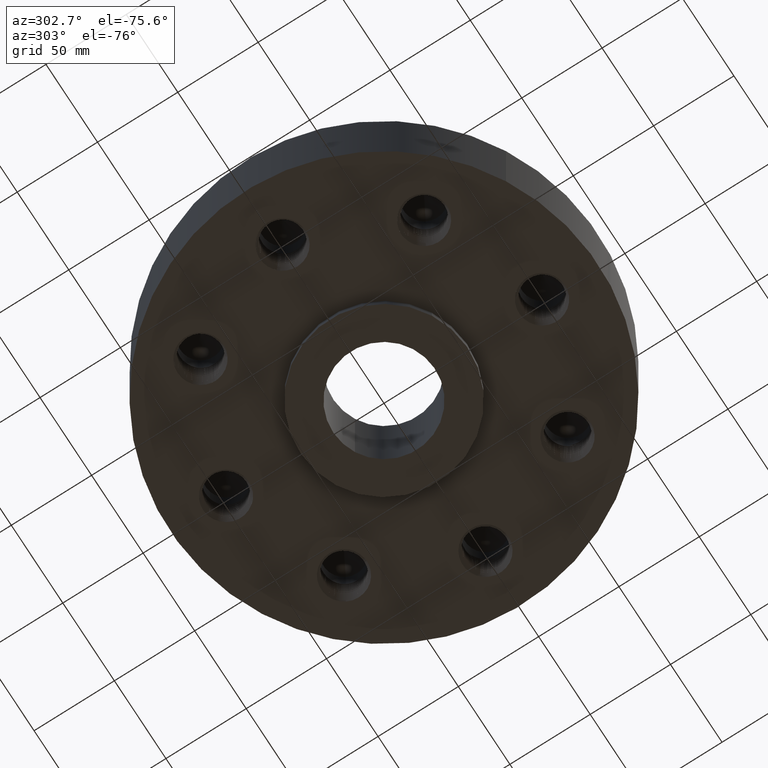
[diagram: clean part render]
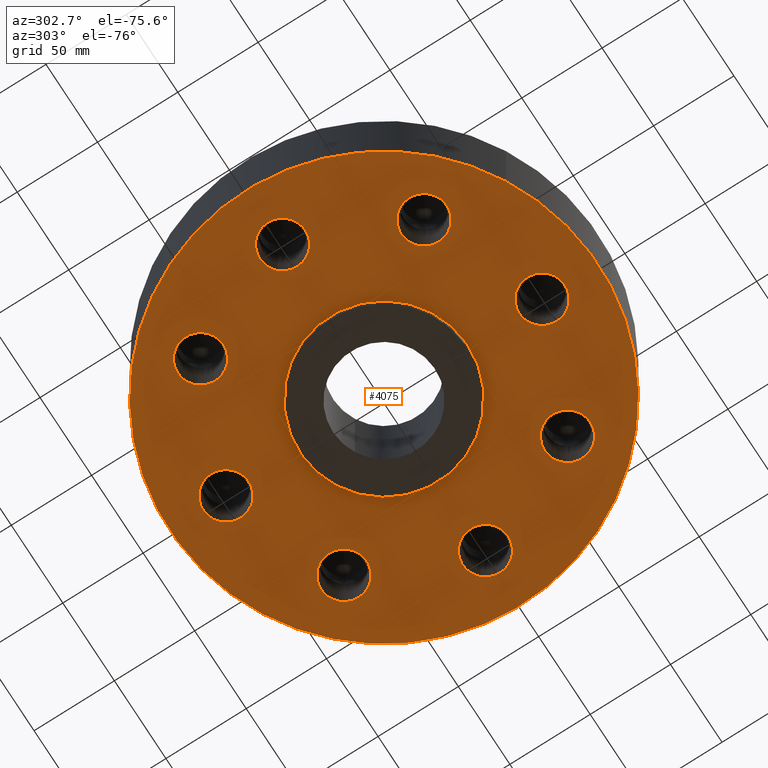
[diagram: same view with one face highlighted and labeled with its STEP entity id]
A machine part, auxiliary view. The second image highlights one B-rep face of the part: STEP entity #4075.
In plain terms, the highlighted planar face has unit normal (0, 0, -1).
Its self-contained STEP definition (entity closure, byte-faithful):
#3642=AXIS2_PLACEMENT_3D('Circle Axis2P3D',#3640,#3641,$) ;
#3662=AXIS2_PLACEMENT_3D('Circle Axis2P3D',#3660,#3661,$) ;
#3682=AXIS2_PLACEMENT_3D('Circle Axis2P3D',#3680,#3681,$) ;
#3694=AXIS2_PLACEMENT_3D('Plane Axis2P3D',#3691,#3692,#3693) ;
#3698=AXIS2_PLACEMENT_3D('Circle Axis2P3D',#3696,#3697,$) ;
#3707=AXIS2_PLACEMENT_3D('Circle Axis2P3D',#3705,#3706,$) ;
#3723=AXIS2_PLACEMENT_3D('Circle Axis2P3D',#3721,#3722,$) ;
#3732=AXIS2_PLACEMENT_3D('Circle Axis2P3D',#3730,#3731,$) ;
#3741=AXIS2_PLACEMENT_3D('Circle Axis2P3D',#3739,#3740,$) ;
#3750=AXIS2_PLACEMENT_3D('Circle Axis2P3D',#3748,#3749,$) ;
#3757=AXIS2_PLACEMENT_3D('Circle Axis2P3D',#3755,#3756,$) ;
#3789=AXIS2_PLACEMENT_3D('Circle Axis2P3D',#3787,#3788,$) ;
#3798=AXIS2_PLACEMENT_3D('Circle Axis2P3D',#3796,#3797,$) ;
#3805=AXIS2_PLACEMENT_3D('Circle Axis2P3D',#3803,#3804,$) ;
#3837=AXIS2_PLACEMENT_3D('Circle Axis2P3D',#3835,#3836,$) ;
#3846=AXIS2_PLACEMENT_3D('Circle Axis2P3D',#3844,#3845,$) ;
#3853=AXIS2_PLACEMENT_3D('Circle Axis2P3D',#3851,#3852,$) ;
#3885=AXIS2_PLACEMENT_3D('Circle Axis2P3D',#3883,#3884,$) ;
#3894=AXIS2_PLACEMENT_3D('Circle Axis2P3D',#3892,#3893,$) ;
#3901=AXIS2_PLACEMENT_3D('Circle Axis2P3D',#3899,#3900,$) ;
#3933=AXIS2_PLACEMENT_3D('Circle Axis2P3D',#3931,#3932,$) ;
#3942=AXIS2_PLACEMENT_3D('Circle Axis2P3D',#3940,#3941,$) ;
#3949=AXIS2_PLACEMENT_3D('Circle Axis2P3D',#3947,#3948,$) ;
#3981=AXIS2_PLACEMENT_3D('Circle Axis2P3D',#3979,#3980,$) ;
#3990=AXIS2_PLACEMENT_3D('Circle Axis2P3D',#3988,#3989,$) ;
#3997=AXIS2_PLACEMENT_3D('Circle Axis2P3D',#3995,#3996,$) ;
#4029=AXIS2_PLACEMENT_3D('Circle Axis2P3D',#4027,#4028,$) ;
#4038=AXIS2_PLACEMENT_3D('Circle Axis2P3D',#4036,#4037,$) ;
#4045=AXIS2_PLACEMENT_3D('Circle Axis2P3D',#4043,#4044,$) ;
#3359=CARTESIAN_POINT('Vertex',(2.74003877711,2.17753877711,-7.14126920328E-014)) ;
#3578=CARTESIAN_POINT('Vertex',(2.80909166781,2.1843124971,0.)) ;
#3582=CARTESIAN_POINT('Control Point',(2.74003877711,2.17753877711,-7.15656755204E-014)) ;
#3583=CARTESIAN_POINT('Control Point',(2.7631925368,2.17837159074,-7.15658967559E-014)) ;
#3584=CARTESIAN_POINT('Control Point',(2.7862702339,2.1806367547,-1.59064916652E-012)) ;
#3585=CARTESIAN_POINT('Control Point',(2.80909163002,2.18431239499,5.88022631462E-012)) ;
#3615=CARTESIAN_POINT('Control Point',(2.74003877711,2.17753877711,4.07077073107E-027)) ;
#3616=CARTESIAN_POINT('Control Point',(2.71689746355,2.17837114305,-7.73908014437E-019)) ;
#3617=CARTESIAN_POINT('Control Point',(2.69383191642,2.18063437458,-2.95351127741E-011)) ;
#3618=CARTESIAN_POINT('Control Point',(2.67101908855,2.1843082813,-7.45290618372E-011)) ;
#3619=CARTESIAN_POINT('Vertex',(2.67101909177,2.18430837211,0.)) ;
#3640=CARTESIAN_POINT('Axis2P3D Location',(2.74003877711,2.74003877711,0.)) ;
#3644=CARTESIAN_POINT('Vertex',(2.24859254245,2.47156047549,-7.86772222175E-017)) ;
#3660=CARTESIAN_POINT('Axis2P3D Location',(2.74003877711,2.74003877711,0.)) ;
#3664=CARTESIAN_POINT('Vertex',(3.23148501177,3.00851707873,-1.83580185174E-016)) ;
#3680=CARTESIAN_POINT('Axis2P3D Location',(2.74003877711,2.74003877711,0.)) ;
#3691=CARTESIAN_POINT('Axis2P3D Location',(0.,5.25000000002,0.)) ;
#3696=CARTESIAN_POINT('Axis2P3D Location',(0.,0.,0.)) ;
#3700=CARTESIAN_POINT('Vertex',(-2.51698407768,-4.60730844994,-3.86042903681E-014)) ;
#3702=CARTESIAN_POINT('Vertex',(2.51698407768,4.60730844994,-3.86042903681E-014)) ;
#3705=CARTESIAN_POINT('Axis2P3D Location',(0.,0.,0.)) ;
#3721=CARTESIAN_POINT('Axis2P3D Location',(0.,0.,0.)) ;
#3725=CARTESIAN_POINT('Vertex',(0.987616609529,1.8078200775,-2.82538646897E-014)) ;
#3727=CARTESIAN_POINT('Vertex',(-0.987616609529,-1.8078200775,-2.82538646897E-014)) ;
#3730=CARTESIAN_POINT('Axis2P3D Location',(0.,0.,0.)) ;
#3739=CARTESIAN_POINT('Axis2P3D Location',(3.87500000002,2.23792987641E-015,0.)) ;
#3743=CARTESIAN_POINT('Vertex',(4.41234779281,-0.157662137441,0.)) ;
#3745=CARTESIAN_POINT('Vertex',(3.53086994622,-0.441785588352,0.)) ;
#3748=CARTESIAN_POINT('Axis2P3D Location',(3.87500000002,1.1189649382E-015,0.)) ;
#3752=CARTESIAN_POINT('Vertex',(3.33765220722,0.157662137441,-1.13644876536E-016)) ;
#3755=CARTESIAN_POINT('Axis2P3D Location',(3.87500000002,2.23792987641E-015,0.)) ;
#3759=CARTESIAN_POINT('Vertex',(3.43323497459,-0.344156450343,0.)) ;
#3763=CARTESIAN_POINT('Control Point',(3.4772524356,-0.397747564419,0.)) ;
#3764=CARTESIAN_POINT('Control Point',(3.46778755071,-0.387576393613,0.)) ;
#3765=CARTESIAN_POINT('Control Point',(3.45864184077,-0.37711811464,0.)) ;
#3766=CARTESIAN_POINT('Control Point',(3.44982725823,-0.366385936873,0.)) ;
#3767=CARTESIAN_POINT('Control Point',(3.44135490697,-0.355393842082,0.)) ;
#3768=CARTESIAN_POINT('Control Point',(3.43323497459,-0.344156450343,0.)) ;
#3769=CARTESIAN_POINT('Vertex',(3.4772524356,-0.397747564419,-7.14126920328E-014)) ;
#3773=CARTESIAN_POINT('Control Point',(3.4772524356,-0.397747564419,0.)) ;
#3774=CARTESIAN_POINT('Control Point',(3.48742907679,-0.407217539811,0.)) ;
#3775=CARTESIAN_POINT('Control Point',(3.49789313516,-0.416367997042,0.)) ;
#3776=CARTESIAN_POINT('Control Point',(3.50863094066,-0.425186805026,0.)) ;
#3777=CARTESIAN_POINT('Control Point',(3.5196281704,-0.433662749092,0.)) ;
#3778=CARTESIAN_POINT('Control Point',(3.53086994622,-0.441785588352,0.)) ;
#3787=CARTESIAN_POINT('Axis2P3D Location',(2.74003877711,-2.74003877711,0.)) ;
#3791=CARTESIAN_POINT('Vertex',(3.00851707873,-3.23148501177,0.)) ;
#3793=CARTESIAN_POINT('Vertex',(2.1843124971,-2.80909166781,0.)) ;
#3796=CARTESIAN_POINT('Axis2P3D Location',(2.74003877711,-2.74003877711,0.)) ;
#3800=CARTESIAN_POINT('Vertex',(2.47156047549,-2.24859254245,-1.74838271595E-017)) ;
#3803=CARTESIAN_POINT('Axis2P3D Location',(2.74003877711,-2.74003877711,0.)) ;
#3807=CARTESIAN_POINT('Vertex',(2.18430837211,-2.67101909177,0.)) ;
#3811=CARTESIAN_POINT('Control Point',(2.17753877711,-2.74003877711,0.)) ;
#3812=CARTESIAN_POINT('Control Point',(2.17803819667,-2.72615398897,0.)) ;
#3813=CARTESIAN_POINT('Control Point',(2.17896632313,-2.71229187547,0.)) ;
#3814=CARTESIAN_POINT('Control Point',(2.18032226772,-2.69847022871,0.)) ;
#3815=CARTESIAN_POINT('Control Point',(2.18210399546,-2.68470678692,0.)) ;
#3816=CARTESIAN_POINT('Control Point',(2.18430837211,-2.67101909177,0.)) ;
#3817=CARTESIAN_POINT('Vertex',(2.17753877711,-2.74003877711,-7.14126920328E-014)) ;
#3821=CARTESIAN_POINT('Control Point',(2.17753877711,-2.74003877711,0.)) ;
#3822=CARTESIAN_POINT('Control Point',(2.17803846529,-2.75393103292,0.)) ;
#3823=CARTESIAN_POINT('Control Point',(2.17896732156,-2.76780058992,0.)) ;
#3824=CARTESIAN_POINT('Control Point',(2.18032425772,-2.78162920393,0.)) ;
#3825=CARTESIAN_POINT('Control Point',(2.18210707591,-2.79539881717,0.)) ;
#3826=CARTESIAN_POINT('Control Point',(2.1843124971,-2.80909166781,0.)) ;
#3835=CARTESIAN_POINT('Axis2P3D Location',(1.1189649382E-015,-3.87500000002,0.)) ;
#3839=CARTESIAN_POINT('Vertex',(-0.157662137441,-4.41234779281,0.)) ;
#3841=CARTESIAN_POINT('Vertex',(-0.441785588351,-3.53086994622,0.)) ;
#3844=CARTESIAN_POINT('Axis2P3D Location',(1.32877086412E-015,-3.87500000002,0.)) ;
#3848=CARTESIAN_POINT('Vertex',(0.157662137441,-3.33765220722,0.)) ;
#3851=CARTESIAN_POINT('Axis2P3D Location',(1.1189649382E-015,-3.87500000002,0.)) ;
#3855=CARTESIAN_POINT('Vertex',(-0.344156450348,-3.43323497459,0.)) ;
#3859=CARTESIAN_POINT('Control Point',(-0.397747564419,-3.4772524356,0.)) ;
#3860=CARTESIAN_POINT('Control Point',(-0.387576393614,-3.46778755071,0.)) ;
#3861=CARTESIAN_POINT('Control Point',(-0.377118114642,-3.45864184077,0.)) ;
#3862=CARTESIAN_POINT('Control Point',(-0.366385936876,-3.44982725823,0.)) ;
#3863=CARTESIAN_POINT('Control Point',(-0.355393842087,-3.44135490697,0.)) ;
#3864=CARTESIAN_POINT('Control Point',(-0.344156450348,-3.43323497459,0.)) ;
#3865=CARTESIAN_POINT('Vertex',(-0.397747564419,-3.4772524356,-7.14126920328E-014)) ;
#3869=CARTESIAN_POINT('Control Point',(-0.397747564419,-3.4772524356,0.)) ;
#3870=CARTESIAN_POINT('Control Point',(-0.407217539811,-3.48742907679,0.)) ;
#3871=CARTESIAN_POINT('Control Point',(-0.416367997041,-3.49789313516,0.)) ;
#3872=CARTESIAN_POINT('Control Point',(-0.425186805026,-3.50863094066,0.)) ;
#3873=CARTESIAN_POINT('Control Point',(-0.433662749091,-3.5196281704,0.)) ;
#3874=CARTESIAN_POINT('Control Point',(-0.441785588351,-3.53086994622,0.)) ;
#3883=CARTESIAN_POINT('Axis2P3D Location',(-2.74003877711,-2.74003877711,0.)) ;
#3887=CARTESIAN_POINT('Vertex',(-3.23148501177,-3.00851707873,0.)) ;
#3889=CARTESIAN_POINT('Vertex',(-2.80909166782,-2.1843124971,0.)) ;
#3892=CARTESIAN_POINT('Axis2P3D Location',(-2.74003877711,-2.74003877711,0.)) ;
#3896=CARTESIAN_POINT('Vertex',(-2.24859254245,-2.47156047549,0.)) ;
#3899=CARTESIAN_POINT('Axis2P3D Location',(-2.74003877711,-2.74003877711,0.)) ;
#3903=CARTESIAN_POINT('Vertex',(-2.67101909177,-2.18430837211,0.)) ;
#3907=CARTESIAN_POINT('Control Point',(-2.74003877711,-2.17753877711,0.)) ;
#3908=CARTESIAN_POINT('Control Point',(-2.72615398897,-2.17803819667,0.)) ;
#3909=CARTESIAN_POINT('Control Point',(-2.71229187548,-2.17896632313,0.)) ;
#3910=CARTESIAN_POINT('Control Point',(-2.69847022871,-2.18032226772,0.)) ;
#3911=CARTESIAN_POINT('Control Point',(-2.68470678692,-2.18210399546,0.)) ;
#3912=CARTESIAN_POINT('Control Point',(-2.67101909177,-2.18430837211,0.)) ;
#3913=CARTESIAN_POINT('Vertex',(-2.74003877711,-2.17753877711,-7.14126920328E-014)) ;
#3917=CARTESIAN_POINT('Control Point',(-2.74003877711,-2.17753877711,0.)) ;
#3918=CARTESIAN_POINT('Control Point',(-2.75393103292,-2.17803846529,0.)) ;
#3919=CARTESIAN_POINT('Control Point',(-2.76780058992,-2.17896732156,0.)) ;
#3920=CARTESIAN_POINT('Control Point',(-2.78162920393,-2.18032425772,0.)) ;
#3921=CARTESIAN_POINT('Control Point',(-2.79539881718,-2.18210707591,0.)) ;
#3922=CARTESIAN_POINT('Control Point',(-2.80909166782,-2.1843124971,0.)) ;
#3931=CARTESIAN_POINT('Axis2P3D Location',(-3.87500000002,-1.1189649382E-015,0.)) ;
#3935=CARTESIAN_POINT('Vertex',(-4.41234779281,0.157662137441,0.)) ;
#3937=CARTESIAN_POINT('Vertex',(-3.53086994622,0.44178558835,0.)) ;
#3940=CARTESIAN_POINT('Axis2P3D Location',(-3.87500000002,-2.23792987641E-015,0.)) ;
#3944=CARTESIAN_POINT('Vertex',(-3.33765220722,-0.157662137441,0.)) ;
#3947=CARTESIAN_POINT('Axis2P3D Location',(-3.87500000002,-1.1189649382E-015,0.)) ;
#3951=CARTESIAN_POINT('Vertex',(-3.43323497459,0.344156450345,0.)) ;
#3955=CARTESIAN_POINT('Control Point',(-3.4772524356,0.397747564419,0.)) ;
#3956=CARTESIAN_POINT('Control Point',(-3.46778755071,0.387576393613,0.)) ;
#3957=CARTESIAN_POINT('Control Point',(-3.45864184077,0.377118114641,0.)) ;
#3958=CARTESIAN_POINT('Control Point',(-3.44982725823,0.366385936874,0.)) ;
#3959=CARTESIAN_POINT('Control Point',(-3.44135490697,0.355393842084,0.)) ;
#3960=CARTESIAN_POINT('Control Point',(-3.43323497459,0.344156450345,0.)) ;
#3961=CARTESIAN_POINT('Vertex',(-3.4772524356,0.397747564419,-7.14126920328E-014)) ;
#3965=CARTESIAN_POINT('Control Point',(-3.4772524356,0.397747564419,0.)) ;
#3966=CARTESIAN_POINT('Control Point',(-3.48742907679,0.40721753981,0.)) ;
#3967=CARTESIAN_POINT('Control Point',(-3.49789313516,0.416367997041,0.)) ;
#3968=CARTESIAN_POINT('Control Point',(-3.50863094066,0.425186805025,0.)) ;
#3969=CARTESIAN_POINT('Control Point',(-3.51962817039,0.43366274909,0.)) ;
#3970=CARTESIAN_POINT('Control Point',(-3.53086994622,0.44178558835,0.)) ;
#3979=CARTESIAN_POINT('Axis2P3D Location',(-2.74003877711,2.74003877711,0.)) ;
#3983=CARTESIAN_POINT('Vertex',(-3.00851707873,3.23148501177,0.)) ;
#3985=CARTESIAN_POINT('Vertex',(-2.1843124971,2.80909166781,0.)) ;
#3988=CARTESIAN_POINT('Axis2P3D Location',(-2.74003877711,2.74003877711,0.)) ;
#3992=CARTESIAN_POINT('Vertex',(-2.47156047549,2.24859254245,0.)) ;
#3995=CARTESIAN_POINT('Axis2P3D Location',(-2.74003877711,2.74003877711,0.)) ;
#3999=CARTESIAN_POINT('Vertex',(-2.18430837211,2.67101909177,0.)) ;
#4003=CARTESIAN_POINT('Control Point',(-2.17753877711,2.74003877711,0.)) ;
#4004=CARTESIAN_POINT('Control Point',(-2.17803819667,2.72615398897,0.)) ;
#4005=CARTESIAN_POINT('Control Point',(-2.17896632313,2.71229187548,0.)) ;
#4006=CARTESIAN_POINT('Control Point',(-2.18032226772,2.69847022871,0.)) ;
#4007=CARTESIAN_POINT('Control Point',(-2.18210399546,2.68470678692,0.)) ;
#4008=CARTESIAN_POINT('Control Point',(-2.18430837211,2.67101909177,0.)) ;
#4009=CARTESIAN_POINT('Vertex',(-2.17753877711,2.74003877711,-7.14126920328E-014)) ;
#4013=CARTESIAN_POINT('Control Point',(-2.17753877711,2.74003877711,0.)) ;
#4014=CARTESIAN_POINT('Control Point',(-2.17803846529,2.75393103292,0.)) ;
#4015=CARTESIAN_POINT('Control Point',(-2.17896732156,2.76780058992,0.)) ;
#4016=CARTESIAN_POINT('Control Point',(-2.18032425772,2.78162920393,0.)) ;
#4017=CARTESIAN_POINT('Control Point',(-2.18210707591,2.79539881717,0.)) ;
#4018=CARTESIAN_POINT('Control Point',(-2.1843124971,2.80909166781,0.)) ;
#4027=CARTESIAN_POINT('Axis2P3D Location',(-1.53857679003E-015,3.87500000002,0.)) ;
#4031=CARTESIAN_POINT('Vertex',(0.157662137441,4.41234779281,0.)) ;
#4033=CARTESIAN_POINT('Vertex',(0.441785588351,3.53086994622,0.)) ;
#4036=CARTESIAN_POINT('Axis2P3D Location',(-1.60851209867E-015,3.87500000002,0.)) ;
#4040=CARTESIAN_POINT('Vertex',(-0.157662137441,3.33765220722,0.)) ;
#4043=CARTESIAN_POINT('Axis2P3D Location',(-1.53857679003E-015,3.87500000002,0.)) ;
#4047=CARTESIAN_POINT('Vertex',(0.34415645034,3.43323497459,0.)) ;
#4051=CARTESIAN_POINT('Control Point',(0.397747564419,3.4772524356,0.)) ;
#4052=CARTESIAN_POINT('Control Point',(0.387576393612,3.46778755071,0.)) ;
#4053=CARTESIAN_POINT('Control Point',(0.377118114639,3.45864184077,0.)) ;
#4054=CARTESIAN_POINT('Control Point',(0.366385936871,3.44982725823,0.)) ;
#4055=CARTESIAN_POINT('Control Point',(0.35539384208,3.44135490697,0.)) ;
#4056=CARTESIAN_POINT('Control Point',(0.34415645034,3.43323497459,0.)) ;
#4057=CARTESIAN_POINT('Vertex',(0.397747564419,3.4772524356,-7.14126920328E-014)) ;
#4061=CARTESIAN_POINT('Control Point',(0.397747564419,3.4772524356,0.)) ;
#4062=CARTESIAN_POINT('Control Point',(0.407217539811,3.48742907679,0.)) ;
#4063=CARTESIAN_POINT('Control Point',(0.416367997042,3.49789313516,0.)) ;
#4064=CARTESIAN_POINT('Control Point',(0.425186805026,3.50863094066,0.)) ;
#4065=CARTESIAN_POINT('Control Point',(0.433662749091,3.5196281704,0.)) ;
#4066=CARTESIAN_POINT('Control Point',(0.441785588351,3.53086994622,0.)) ;
#3641=DIRECTION('Axis2P3D Direction',(0.,0.,-0.0393700787402)) ;
#3661=DIRECTION('Axis2P3D Direction',(0.,0.,-0.0393700787402)) ;
#3681=DIRECTION('Axis2P3D Direction',(0.,0.,-0.0393700787402)) ;
#3692=DIRECTION('Axis2P3D Direction',(0.,0.,-0.0393700787402)) ;
#3693=DIRECTION('Axis2P3D XDirection',(0.0393700787402,0.,0.)) ;
#3697=DIRECTION('Axis2P3D Direction',(0.,0.,-0.0393700787402)) ;
#3706=DIRECTION('Axis2P3D Direction',(0.,0.,-0.0393700787402)) ;
#3722=DIRECTION('Axis2P3D Direction',(0.,0.,-0.0393700787402)) ;
#3731=DIRECTION('Axis2P3D Direction',(0.,0.,-0.0393700787402)) ;
#3740=DIRECTION('Axis2P3D Direction',(0.,0.,-0.0393700787402)) ;
#3749=DIRECTION('Axis2P3D Direction',(0.,0.,-0.0393700787402)) ;
#3756=DIRECTION('Axis2P3D Direction',(0.,0.,-0.0393700787402)) ;
#3788=DIRECTION('Axis2P3D Direction',(0.,0.,-0.0393700787402)) ;
#3797=DIRECTION('Axis2P3D Direction',(0.,0.,-0.0393700787402)) ;
#3804=DIRECTION('Axis2P3D Direction',(0.,0.,-0.0393700787402)) ;
#3836=DIRECTION('Axis2P3D Direction',(0.,0.,-0.0393700787402)) ;
#3845=DIRECTION('Axis2P3D Direction',(0.,0.,-0.0393700787402)) ;
#3852=DIRECTION('Axis2P3D Direction',(0.,0.,-0.0393700787402)) ;
#3884=DIRECTION('Axis2P3D Direction',(0.,0.,-0.0393700787402)) ;
#3893=DIRECTION('Axis2P3D Direction',(0.,0.,-0.0393700787402)) ;
#3900=DIRECTION('Axis2P3D Direction',(0.,0.,-0.0393700787402)) ;
#3932=DIRECTION('Axis2P3D Direction',(0.,0.,-0.0393700787402)) ;
#3941=DIRECTION('Axis2P3D Direction',(0.,0.,-0.0393700787402)) ;
#3948=DIRECTION('Axis2P3D Direction',(0.,0.,-0.0393700787402)) ;
#3980=DIRECTION('Axis2P3D Direction',(0.,0.,-0.0393700787402)) ;
#3989=DIRECTION('Axis2P3D Direction',(0.,0.,-0.0393700787402)) ;
#3996=DIRECTION('Axis2P3D Direction',(0.,0.,-0.0393700787402)) ;
#4028=DIRECTION('Axis2P3D Direction',(0.,0.,-0.0393700787402)) ;
#4037=DIRECTION('Axis2P3D Direction',(0.,0.,-0.0393700787402)) ;
#4044=DIRECTION('Axis2P3D Direction',(0.,0.,-0.0393700787402)) ;
#3711=ORIENTED_EDGE('',*,*,#3704,.T.) ;
#3712=ORIENTED_EDGE('',*,*,#3709,.T.) ;
#3715=ORIENTED_EDGE('',*,*,#3684,.F.) ;
#3716=ORIENTED_EDGE('',*,*,#3666,.F.) ;
#3717=ORIENTED_EDGE('',*,*,#3646,.F.) ;
#3718=ORIENTED_EDGE('',*,*,#3621,.F.) ;
#3719=ORIENTED_EDGE('',*,*,#3586,.T.) ;
#3736=ORIENTED_EDGE('',*,*,#3729,.F.) ;
#3737=ORIENTED_EDGE('',*,*,#3734,.F.) ;
#3781=ORIENTED_EDGE('',*,*,#3747,.F.) ;
#3782=ORIENTED_EDGE('',*,*,#3754,.F.) ;
#3783=ORIENTED_EDGE('',*,*,#3761,.F.) ;
#3784=ORIENTED_EDGE('',*,*,#3771,.F.) ;
#3785=ORIENTED_EDGE('',*,*,#3779,.T.) ;
#3829=ORIENTED_EDGE('',*,*,#3795,.F.) ;
#3830=ORIENTED_EDGE('',*,*,#3802,.F.) ;
#3831=ORIENTED_EDGE('',*,*,#3809,.F.) ;
#3832=ORIENTED_EDGE('',*,*,#3819,.F.) ;
#3833=ORIENTED_EDGE('',*,*,#3827,.T.) ;
#3877=ORIENTED_EDGE('',*,*,#3843,.F.) ;
#3878=ORIENTED_EDGE('',*,*,#3850,.F.) ;
#3879=ORIENTED_EDGE('',*,*,#3857,.F.) ;
#3880=ORIENTED_EDGE('',*,*,#3867,.F.) ;
#3881=ORIENTED_EDGE('',*,*,#3875,.T.) ;
#3925=ORIENTED_EDGE('',*,*,#3891,.F.) ;
#3926=ORIENTED_EDGE('',*,*,#3898,.F.) ;
#3927=ORIENTED_EDGE('',*,*,#3905,.F.) ;
#3928=ORIENTED_EDGE('',*,*,#3915,.F.) ;
#3929=ORIENTED_EDGE('',*,*,#3923,.T.) ;
#3973=ORIENTED_EDGE('',*,*,#3939,.F.) ;
#3974=ORIENTED_EDGE('',*,*,#3946,.F.) ;
#3975=ORIENTED_EDGE('',*,*,#3953,.F.) ;
#3976=ORIENTED_EDGE('',*,*,#3963,.F.) ;
#3977=ORIENTED_EDGE('',*,*,#3971,.T.) ;
#4021=ORIENTED_EDGE('',*,*,#3987,.F.) ;
#4022=ORIENTED_EDGE('',*,*,#3994,.F.) ;
#4023=ORIENTED_EDGE('',*,*,#4001,.F.) ;
#4024=ORIENTED_EDGE('',*,*,#4011,.F.) ;
#4025=ORIENTED_EDGE('',*,*,#4019,.T.) ;
#4069=ORIENTED_EDGE('',*,*,#4035,.F.) ;
#4070=ORIENTED_EDGE('',*,*,#4042,.F.) ;
#4071=ORIENTED_EDGE('',*,*,#4049,.F.) ;
#4072=ORIENTED_EDGE('',*,*,#4059,.F.) ;
#4073=ORIENTED_EDGE('',*,*,#4067,.T.) ;
#3720=FACE_BOUND('',#3714,.T.) ;
#3738=FACE_BOUND('',#3735,.T.) ;
#3786=FACE_BOUND('',#3780,.T.) ;
#3834=FACE_BOUND('',#3828,.T.) ;
#3882=FACE_BOUND('',#3876,.T.) ;
#3930=FACE_BOUND('',#3924,.T.) ;
#3978=FACE_BOUND('',#3972,.T.) ;
#4026=FACE_BOUND('',#4020,.T.) ;
#4074=FACE_BOUND('',#4068,.T.) ;
#4075=ADVANCED_FACE('PartBody',(#3713,#3720,#3738,#3786,#3834,#3882,#3930,#3978,#4026,#4074),#3695,.T.) ;
#3581=B_SPLINE_CURVE_WITH_KNOTS('',3,(#3582,#3583,#3584,#3585),.UNSPECIFIED.,.F.,.U.,(4,4),(0.,2.42951471163),.UNSPECIFIED.) ;
#3614=B_SPLINE_CURVE_WITH_KNOTS('',3,(#3615,#3616,#3617,#3618),.UNSPECIFIED.,.F.,.U.,(4,4),(0.,2.42820874445),.UNSPECIFIED.) ;
#3762=B_SPLINE_CURVE_WITH_KNOTS('',5,(#3763,#3764,#3765,#3766,#3767,#3768),.UNSPECIFIED.,.F.,.U.,(6,6),(0.,2.42820874455),.UNSPECIFIED.) ;
#3772=B_SPLINE_CURVE_WITH_KNOTS('',5,(#3773,#3774,#3775,#3776,#3777,#3778),.UNSPECIFIED.,.F.,.U.,(6,6),(0.,2.42951471169),.UNSPECIFIED.) ;
#3810=B_SPLINE_CURVE_WITH_KNOTS('',5,(#3811,#3812,#3813,#3814,#3815,#3816),.UNSPECIFIED.,.F.,.U.,(6,6),(0.,2.42820874454),.UNSPECIFIED.) ;
#3820=B_SPLINE_CURVE_WITH_KNOTS('',5,(#3821,#3822,#3823,#3824,#3825,#3826),.UNSPECIFIED.,.F.,.U.,(6,6),(0.,2.42951471161),.UNSPECIFIED.) ;
#3858=B_SPLINE_CURVE_WITH_KNOTS('',5,(#3859,#3860,#3861,#3862,#3863,#3864),.UNSPECIFIED.,.F.,.U.,(6,6),(0.,2.42820874427),.UNSPECIFIED.) ;
#3868=B_SPLINE_CURVE_WITH_KNOTS('',5,(#3869,#3870,#3871,#3872,#3873,#3874),.UNSPECIFIED.,.F.,.U.,(6,6),(0.,2.42951471161),.UNSPECIFIED.) ;
#3906=B_SPLINE_CURVE_WITH_KNOTS('',5,(#3907,#3908,#3909,#3910,#3911,#3912),.UNSPECIFIED.,.F.,.U.,(6,6),(0.,2.42820874431),.UNSPECIFIED.) ;
#3916=B_SPLINE_CURVE_WITH_KNOTS('',5,(#3917,#3918,#3919,#3920,#3921,#3922),.UNSPECIFIED.,.F.,.U.,(6,6),(0.,2.42951471197),.UNSPECIFIED.) ;
#3954=B_SPLINE_CURVE_WITH_KNOTS('',5,(#3955,#3956,#3957,#3958,#3959,#3960),.UNSPECIFIED.,.F.,.U.,(6,6),(0.,2.42820874441),.UNSPECIFIED.) ;
#3964=B_SPLINE_CURVE_WITH_KNOTS('',5,(#3965,#3966,#3967,#3968,#3969,#3970),.UNSPECIFIED.,.F.,.U.,(6,6),(0.,2.42951471153),.UNSPECIFIED.) ;
#4002=B_SPLINE_CURVE_WITH_KNOTS('',5,(#4003,#4004,#4005,#4006,#4007,#4008),.UNSPECIFIED.,.F.,.U.,(6,6),(0.,2.42820874431),.UNSPECIFIED.) ;
#4012=B_SPLINE_CURVE_WITH_KNOTS('',5,(#4013,#4014,#4015,#4016,#4017,#4018),.UNSPECIFIED.,.F.,.U.,(6,6),(0.,2.42951471174),.UNSPECIFIED.) ;
#4050=B_SPLINE_CURVE_WITH_KNOTS('',5,(#4051,#4052,#4053,#4054,#4055,#4056),.UNSPECIFIED.,.F.,.U.,(6,6),(0.,2.42820874469),.UNSPECIFIED.) ;
#4060=B_SPLINE_CURVE_WITH_KNOTS('',5,(#4061,#4062,#4063,#4064,#4065,#4066),.UNSPECIFIED.,.F.,.U.,(6,6),(0.,2.42951471165),.UNSPECIFIED.) ;
#3643=CIRCLE('generated circle',#3642,0.560000000002) ;
#3663=CIRCLE('generated circle',#3662,0.560000000002) ;
#3683=CIRCLE('generated circle',#3682,0.560000000002) ;
#3699=CIRCLE('generated circle',#3698,5.25000000002) ;
#3708=CIRCLE('generated circle',#3707,5.25000000002) ;
#3724=CIRCLE('generated circle',#3723,2.06000000001) ;
#3733=CIRCLE('generated circle',#3732,2.06000000001) ;
#3742=CIRCLE('generated circle',#3741,0.560000000002) ;
#3751=CIRCLE('generated circle',#3750,0.560000000002) ;
#3758=CIRCLE('generated circle',#3757,0.560000000002) ;
#3790=CIRCLE('generated circle',#3789,0.560000000002) ;
#3799=CIRCLE('generated circle',#3798,0.560000000002) ;
#3806=CIRCLE('generated circle',#3805,0.560000000002) ;
#3838=CIRCLE('generated circle',#3837,0.560000000002) ;
#3847=CIRCLE('generated circle',#3846,0.560000000002) ;
#3854=CIRCLE('generated circle',#3853,0.560000000002) ;
#3886=CIRCLE('generated circle',#3885,0.560000000002) ;
#3895=CIRCLE('generated circle',#3894,0.560000000002) ;
#3902=CIRCLE('generated circle',#3901,0.560000000002) ;
#3934=CIRCLE('generated circle',#3933,0.560000000002) ;
#3943=CIRCLE('generated circle',#3942,0.560000000002) ;
#3950=CIRCLE('generated circle',#3949,0.560000000002) ;
#3982=CIRCLE('generated circle',#3981,0.560000000002) ;
#3991=CIRCLE('generated circle',#3990,0.560000000002) ;
#3998=CIRCLE('generated circle',#3997,0.560000000002) ;
#4030=CIRCLE('generated circle',#4029,0.560000000002) ;
#4039=CIRCLE('generated circle',#4038,0.560000000002) ;
#4046=CIRCLE('generated circle',#4045,0.560000000002) ;
#3586=EDGE_CURVE('',#3360,#3579,#3581,.T.) ;
#3621=EDGE_CURVE('',#3360,#3620,#3614,.T.) ;
#3646=EDGE_CURVE('',#3620,#3645,#3643,.T.) ;
#3666=EDGE_CURVE('',#3645,#3665,#3663,.T.) ;
#3684=EDGE_CURVE('',#3665,#3579,#3683,.T.) ;
#3704=EDGE_CURVE('',#3701,#3703,#3699,.T.) ;
#3709=EDGE_CURVE('',#3703,#3701,#3708,.T.) ;
#3729=EDGE_CURVE('',#3726,#3728,#3724,.T.) ;
#3734=EDGE_CURVE('',#3728,#3726,#3733,.T.) ;
#3747=EDGE_CURVE('',#3744,#3746,#3742,.T.) ;
#3754=EDGE_CURVE('',#3753,#3744,#3751,.T.) ;
#3761=EDGE_CURVE('',#3760,#3753,#3758,.T.) ;
#3771=EDGE_CURVE('',#3770,#3760,#3762,.T.) ;
#3779=EDGE_CURVE('',#3770,#3746,#3772,.T.) ;
#3795=EDGE_CURVE('',#3792,#3794,#3790,.T.) ;
#3802=EDGE_CURVE('',#3801,#3792,#3799,.T.) ;
#3809=EDGE_CURVE('',#3808,#3801,#3806,.T.) ;
#3819=EDGE_CURVE('',#3818,#3808,#3810,.T.) ;
#3827=EDGE_CURVE('',#3818,#3794,#3820,.T.) ;
#3843=EDGE_CURVE('',#3840,#3842,#3838,.T.) ;
#3850=EDGE_CURVE('',#3849,#3840,#3847,.T.) ;
#3857=EDGE_CURVE('',#3856,#3849,#3854,.T.) ;
#3867=EDGE_CURVE('',#3866,#3856,#3858,.T.) ;
#3875=EDGE_CURVE('',#3866,#3842,#3868,.T.) ;
#3891=EDGE_CURVE('',#3888,#3890,#3886,.T.) ;
#3898=EDGE_CURVE('',#3897,#3888,#3895,.T.) ;
#3905=EDGE_CURVE('',#3904,#3897,#3902,.T.) ;
#3915=EDGE_CURVE('',#3914,#3904,#3906,.T.) ;
#3923=EDGE_CURVE('',#3914,#3890,#3916,.T.) ;
#3939=EDGE_CURVE('',#3936,#3938,#3934,.T.) ;
#3946=EDGE_CURVE('',#3945,#3936,#3943,.T.) ;
#3953=EDGE_CURVE('',#3952,#3945,#3950,.T.) ;
#3963=EDGE_CURVE('',#3962,#3952,#3954,.T.) ;
#3971=EDGE_CURVE('',#3962,#3938,#3964,.T.) ;
#3987=EDGE_CURVE('',#3984,#3986,#3982,.T.) ;
#3994=EDGE_CURVE('',#3993,#3984,#3991,.T.) ;
#4001=EDGE_CURVE('',#4000,#3993,#3998,.T.) ;
#4011=EDGE_CURVE('',#4010,#4000,#4002,.T.) ;
#4019=EDGE_CURVE('',#4010,#3986,#4012,.T.) ;
#4035=EDGE_CURVE('',#4032,#4034,#4030,.T.) ;
#4042=EDGE_CURVE('',#4041,#4032,#4039,.T.) ;
#4049=EDGE_CURVE('',#4048,#4041,#4046,.T.) ;
#4059=EDGE_CURVE('',#4058,#4048,#4050,.T.) ;
#4067=EDGE_CURVE('',#4058,#4034,#4060,.T.) ;
#3710=EDGE_LOOP('',(#3711,#3712)) ;
#3714=EDGE_LOOP('',(#3715,#3716,#3717,#3718,#3719)) ;
#3735=EDGE_LOOP('',(#3736,#3737)) ;
#3780=EDGE_LOOP('',(#3781,#3782,#3783,#3784,#3785)) ;
#3828=EDGE_LOOP('',(#3829,#3830,#3831,#3832,#3833)) ;
#3876=EDGE_LOOP('',(#3877,#3878,#3879,#3880,#3881)) ;
#3924=EDGE_LOOP('',(#3925,#3926,#3927,#3928,#3929)) ;
#3972=EDGE_LOOP('',(#3973,#3974,#3975,#3976,#3977)) ;
#4020=EDGE_LOOP('',(#4021,#4022,#4023,#4024,#4025)) ;
#4068=EDGE_LOOP('',(#4069,#4070,#4071,#4072,#4073)) ;
#3713=FACE_OUTER_BOUND('',#3710,.T.) ;
#3695=PLANE('',#3694) ;
#3360=VERTEX_POINT('',#3359) ;
#3579=VERTEX_POINT('',#3578) ;
#3620=VERTEX_POINT('',#3619) ;
#3645=VERTEX_POINT('',#3644) ;
#3665=VERTEX_POINT('',#3664) ;
#3701=VERTEX_POINT('',#3700) ;
#3703=VERTEX_POINT('',#3702) ;
#3726=VERTEX_POINT('',#3725) ;
#3728=VERTEX_POINT('',#3727) ;
#3744=VERTEX_POINT('',#3743) ;
#3746=VERTEX_POINT('',#3745) ;
#3753=VERTEX_POINT('',#3752) ;
#3760=VERTEX_POINT('',#3759) ;
#3770=VERTEX_POINT('',#3769) ;
#3792=VERTEX_POINT('',#3791) ;
#3794=VERTEX_POINT('',#3793) ;
#3801=VERTEX_POINT('',#3800) ;
#3808=VERTEX_POINT('',#3807) ;
#3818=VERTEX_POINT('',#3817) ;
#3840=VERTEX_POINT('',#3839) ;
#3842=VERTEX_POINT('',#3841) ;
#3849=VERTEX_POINT('',#3848) ;
#3856=VERTEX_POINT('',#3855) ;
#3866=VERTEX_POINT('',#3865) ;
#3888=VERTEX_POINT('',#3887) ;
#3890=VERTEX_POINT('',#3889) ;
#3897=VERTEX_POINT('',#3896) ;
#3904=VERTEX_POINT('',#3903) ;
#3914=VERTEX_POINT('',#3913) ;
#3936=VERTEX_POINT('',#3935) ;
#3938=VERTEX_POINT('',#3937) ;
#3945=VERTEX_POINT('',#3944) ;
#3952=VERTEX_POINT('',#3951) ;
#3962=VERTEX_POINT('',#3961) ;
#3984=VERTEX_POINT('',#3983) ;
#3986=VERTEX_POINT('',#3985) ;
#3993=VERTEX_POINT('',#3992) ;
#4000=VERTEX_POINT('',#3999) ;
#4010=VERTEX_POINT('',#4009) ;
#4032=VERTEX_POINT('',#4031) ;
#4034=VERTEX_POINT('',#4033) ;
#4041=VERTEX_POINT('',#4040) ;
#4048=VERTEX_POINT('',#4047) ;
#4058=VERTEX_POINT('',#4057) ;